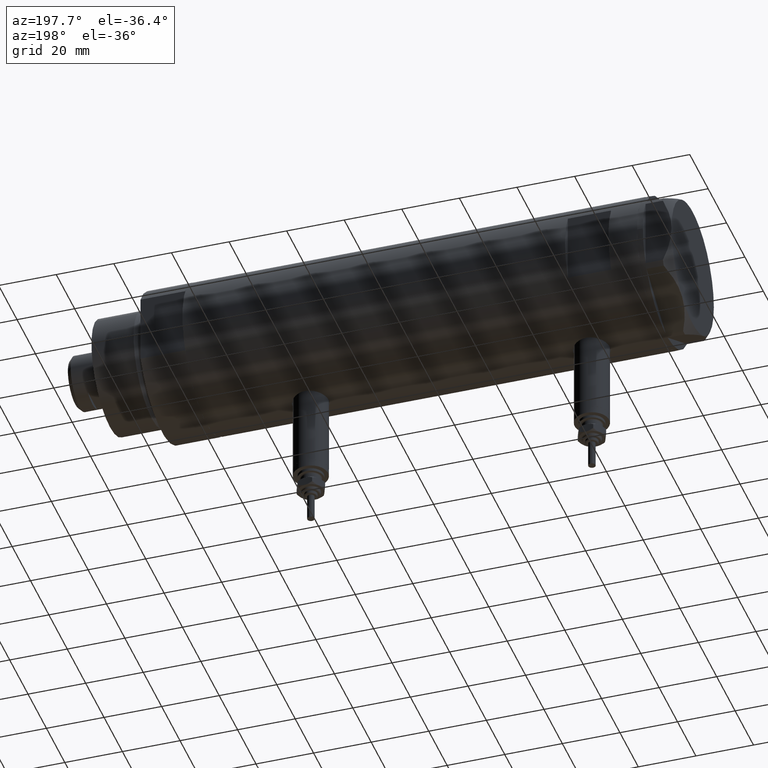
[diagram: clean part render]
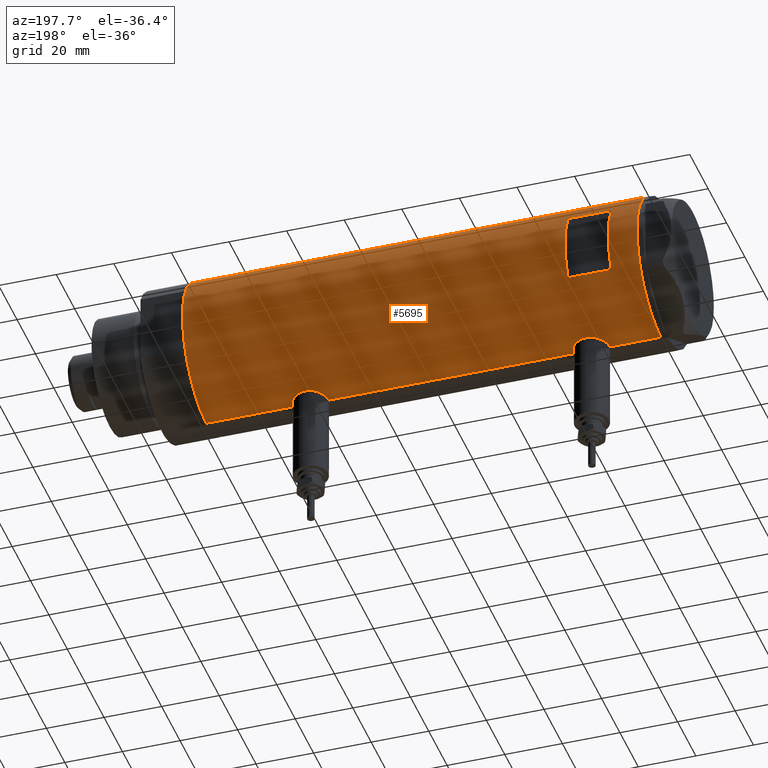
[diagram: same view with one face highlighted and labeled with its STEP entity id]
A machine part, auxiliary view. The second image highlights one B-rep face of the part: STEP entity #5695.
In plain terms, the highlighted cylindrical surface (partial cylindrical patch) has radius 26 mm, axis along (-1, -0, 0).
Its self-contained STEP definition (entity closure, byte-faithful):
#8 = CARTESIAN_POINT ( 'NONE',  ( -25.45277932469922177, 5.307477387851101014, -45.95672800165312566 ) ) ;
#18 = CARTESIAN_POINT ( 'NONE',  ( -25.98789693408479451, 0.8193301824841956460, 48.75051019734655000 ) ) ;
#31 = EDGE_CURVE ( 'NONE', #2025, #3007, #1202, .T. ) ;
#150 = CARTESIAN_POINT ( 'NONE',  ( 25.00820649268566598, 7.115348876445588999, 61.87184000475453161 ) ) ;
#160 = ORIENTED_EDGE ( 'NONE', *, *, #3259, .F. ) ;
#164 = DIRECTION ( 'NONE',  ( -0.000000000000000000, -0.000000000000000000, -1.000000000000000000 ) ) ;
#180 = CARTESIAN_POINT ( 'NONE',  ( 24.89471231507667426, 7.500219916954786292, 59.93878226883027338 ) ) ;
#182 = CARTESIAN_POINT ( 'NONE',  ( 25.72868876879095623, 3.768709330223690479, -33.24732513129933409 ) ) ;
#202 = DIRECTION ( 'NONE',  ( 0.000000000000000000, 0.000000000000000000, 1.000000000000000000 ) ) ;
#207 = CARTESIAN_POINT ( 'NONE',  ( -25.81251897318926680, 3.135439098787741852, -37.22800821914827907 ) ) ;
#210 = CARTESIAN_POINT ( 'NONE',  ( 25.52465069878074644, 4.952713637311400241, 53.81255139184744252 ) ) ;
#213 = CARTESIAN_POINT ( 'NONE',  ( 25.31017500740584936, 5.951503630041857562, -35.17950407362597076 ) ) ;
#233 = ORIENTED_EDGE ( 'NONE', *, *, #1770, .F. ) ;
#241 = CARTESIAN_POINT ( 'NONE',  ( -25.99009688862344447, 0.8219492608955337731, -36.44084060773424483 ) ) ;
#244 = CARTESIAN_POINT ( 'NONE',  ( 25.72923282622329566, 3.765147152416745246, 52.94514424215292081 ) ) ;
#245 = VERTEX_POINT ( 'NONE', #3502 ) ;
#249 = CARTESIAN_POINT ( 'NONE',  ( -25.24784248027030031, 6.209126813737962713, 54.12731838311943022 ) ) ;
#274 = CARTESIAN_POINT ( 'NONE',  ( 25.38117076385348625, 5.641057083563588037, -34.80143420258151110 ) ) ;
#305 = CARTESIAN_POINT ( 'NONE',  ( 24.90951684770588415, 7.451587374037536016, -40.73395604521197555 ) ) ;
#309 = CARTESIAN_POINT ( 'NONE',  ( -25.28673619335055278, 6.048783215285168602, 53.32449009651820404 ) ) ;
#372 = CARTESIAN_POINT ( 'NONE',  ( -25.99009688862344092, 0.8219492608955323298, 61.15915939226576370 ) ) ;
#401 = CARTESIAN_POINT ( 'NONE',  ( -25.99759026373432036, 0.4091325989570642196, 48.71000109955099333 ) ) ;
#425 = CARTESIAN_POINT ( 'NONE',  ( -25.38875076695535071, 5.605452563035138169, -45.42185900824106426 ) ) ;
#458 = ORIENTED_EDGE ( 'NONE', *, *, #1497, .F. ) ;
#460 = CARTESIAN_POINT ( 'NONE',  ( -25.95208098418916975, 1.628413954368978622, -48.69806792170717813 ) ) ;
#490 = CARTESIAN_POINT ( 'NONE',  ( -25.57167265924275412, 4.701795585128879296, -46.77276288310034147 ) ) ;
#576 = DIRECTION ( 'NONE',  ( 0.000000000000000000, 0.000000000000000000, 1.000000000000000000 ) ) ;
#601 = VECTOR ( 'NONE', #1387, 1000.000000000000000 ) ;
#667 = DIRECTION ( 'NONE',  ( 0.000000000000000000, 0.000000000000000000, 1.000000000000000000 ) ) ;
#668 = CARTESIAN_POINT ( 'NONE',  ( 25.59528664075984494, 4.573671112500300673, 53.50090496483274904 ) ) ;
#670 = CARTESIAN_POINT ( 'NONE',  ( 25.20855488770171959, 6.367749707222635891, -35.77997776959043108 ) ) ;
#693 = LINE ( 'NONE', #3207, #3354 ) ;
#695 = CARTESIAN_POINT ( 'NONE',  ( 25.20855488770172670, 6.367749707222635891, 63.42002223040960018 ) ) ;
#722 = CARTESIAN_POINT ( 'NONE',  ( -25.72105193281916513, 3.813738527046914406, -37.68166308900568140 ) ) ;
#725 = CARTESIAN_POINT ( 'NONE',  ( 25.59685363299822924, 4.579266302355740947, 65.40972068102654191 ) ) ;
#759 = CARTESIAN_POINT ( 'NONE',  ( 25.17424625143663164, 6.506691718592096940, -43.51241626033723975 ) ) ;
#761 = CARTESIAN_POINT ( 'NONE',  ( -25.67095236150574067, 4.133649689219791590, 59.65535228274259083 ) ) ;
#782 = CARTESIAN_POINT ( 'NONE',  ( 25.52590365620542912, 4.955152228772147893, -34.09876272411761278 ) ) ;
#784 = CARTESIAN_POINT ( 'NONE',  ( -26.00000000000000711, 0.4145874687851189289, 61.20000000000001705 ) ) ;
#791 = ORIENTED_EDGE ( 'NONE', *, *, #5714, .T. ) ;
#817 = CARTESIAN_POINT ( 'NONE',  ( -25.31518616157687163, 5.930210831981637121, 52.93412882792974017 ) ) ;
#845 = CARTESIAN_POINT ( 'NONE',  ( -25.92257874449351007, 2.014648337067152184, -36.73003581636322679 ) ) ;
#847 = DIRECTION ( 'NONE',  ( 0.000000000000000000, 0.000000000000000000, 1.000000000000000000 ) ) ;
#858 = CARTESIAN_POINT ( 'NONE',  ( -12.12435565298214080, 23.00000000000000355, 68.95000000000003126 ) ) ;
#874 = LINE ( 'NONE', #2340, #4881 ) ;
#877 = CARTESIAN_POINT ( 'NONE',  ( 0.000000000000000000, 0.000000000000000000, -78.95000000000000284 ) ) ;
#922 = LINE ( 'NONE', #4403, #1551 ) ;
#999 = EDGE_CURVE ( 'NONE', #5421, #3831, #3706, .T. ) ;
#1111 = CARTESIAN_POINT ( 'NONE',  ( 25.08669247833292815, 6.831361936037320781, 62.55537739403792585 ) ) ;
#1177 = CARTESIAN_POINT ( 'NONE',  ( 25.78997056644824326, 3.329333406239038506, 66.18834808433845751 ) ) ;
#1179 = CARTESIAN_POINT ( 'NONE',  ( 24.95233689475079331, 7.306396477445179727, -41.46103813146665829 ) ) ;
#1201 = CARTESIAN_POINT ( 'NONE',  ( -25.33346170681504006, 5.849967696906725578, -40.44052947900493677 ) ) ;
#1202 = CIRCLE ( 'NONE', #6194, 26.00000000000000355 ) ;
#1204 = CARTESIAN_POINT ( 'NONE',  ( 24.90976107960111818, 7.450765568638821890, 60.43882869351467235 ) ) ;
#1210 = CARTESIAN_POINT ( 'NONE',  ( -26.00000000000000355, -2.813058302341337106E-16, 61.20000000000000284 ) ) ;
#1238 = CARTESIAN_POINT ( 'NONE',  ( 25.01140519645288762, 7.101774040639622143, 57.02607764299175130 ) ) ;
#1240 = CARTESIAN_POINT ( 'NONE',  ( 25.59528664075983428, 4.573671112500298896, -45.69909503516725380 ) ) ;
#1244 = CARTESIAN_POINT ( 'NONE',  ( -25.43062364804612230, 5.412314182902753679, 51.81772351419070333 ) ) ;
#1273 = CARTESIAN_POINT ( 'NONE',  ( 25.48882460966380492, 5.133289275481218716, -45.22343523597909609 ) ) ;
#1276 = CARTESIAN_POINT ( 'NONE',  ( -25.72105193281917224, 3.813738527046911297, 59.91833691099432713 ) ) ;
#1279 = CARTESIAN_POINT ( 'NONE',  ( 0.000000000000000000, 0.000000000000000000, 53.95000000000012363 ) ) ;
#1300 = CARTESIAN_POINT ( 'NONE',  ( -25.96182217530152769, 1.422664245316465070, 61.03935273092390190 ) ) ;
#1323 = VECTOR ( 'NONE', #3416, 1000.000000000000000 ) ;
#1352 = CARTESIAN_POINT ( 'NONE',  ( 26.00000000000000355, 0.000000000000000000, 78.95000000000000284 ) ) ;
#1375 = VERTEX_POINT ( 'NONE', #2892 ) ;
#1383 = CARTESIAN_POINT ( 'NONE',  ( -25.28915991580759481, 6.038390257328916988, -41.02447348853093700 ) ) ;
#1386 = EDGE_CURVE ( 'NONE', #6103, #1459, #5514, .T. ) ;
#1387 = DIRECTION ( 'NONE',  ( 0.000000000000000000, 0.000000000000000000, 1.000000000000000000 ) ) ;
#1412 = CARTESIAN_POINT ( 'NONE',  ( -26.00000000000000355, 0.2043916521038984246, -48.90000000000002700 ) ) ;
#1422 = CARTESIAN_POINT ( 'NONE',  ( -25.92432690655986960, 2.018143994254070872, 49.02070577177285315 ) ) ;
#1433 = CIRCLE ( 'NONE', #2047, 26.00000000000000355 ) ;
#1458 = CARTESIAN_POINT ( 'NONE',  ( 25.88814720404044323, 2.420758939209245231, 52.34711713171547132 ) ) ;
#1459 = VERTEX_POINT ( 'NONE', #3090 ) ;
#1484 = CARTESIAN_POINT ( 'NONE',  ( 25.86510134953875450, 2.654921787384014298, 52.43132938305096502 ) ) ;
#1497 = EDGE_CURVE ( 'NONE', #2025, #3140, #3814, .T. ) ;
#1551 = VECTOR ( 'NONE', #576, 1000.000000000000000 ) ;
#1582 = EDGE_CURVE ( 'NONE', #245, #6103, #874, .T. ) ;
#1614 = CARTESIAN_POINT ( 'NONE',  ( 25.72868876879096334, 3.768709330223684706, 65.95267486870066875 ) ) ;
#1617 = CARTESIAN_POINT ( 'NONE',  ( -26.00000000000000355, 3.184077527313362130E-15, 48.70000000000000995 ) ) ;
#1653 = CARTESIAN_POINT ( 'NONE',  ( 25.97197502027375293, 1.230965554787593730, -32.34759175501623218 ) ) ;
#1682 = CARTESIAN_POINT ( 'NONE',  ( -25.57189498399056049, 4.707763994471534374, -38.51909718944452266 ) ) ;
#1710 = CARTESIAN_POINT ( 'NONE',  ( 25.38132706741445688, 5.649034551923787895, 54.49268047185956476 ) ) ;
#1711 = ORIENTED_EDGE ( 'NONE', *, *, #4859, .F. ) ;
#1712 = CARTESIAN_POINT ( 'NONE',  ( 25.98255381630415783, 0.9836221648041303389, -32.31066901941808567 ) ) ;
#1743 = CARTESIAN_POINT ( 'NONE',  ( 24.89484527721569052, 7.499778575171895056, 58.95449194517063773 ) ) ;
#1745 = CARTESIAN_POINT ( 'NONE',  ( 25.17636585680005723, 6.493453152855874322, -35.98900750337197962 ) ) ;
#1750 = CARTESIAN_POINT ( 'NONE',  ( -25.52242378584899285, 4.965907353613394193, 58.76719602921738783 ) ) ;
#1770 = EDGE_CURVE ( 'NONE', #4267, #3263, #4775, .T. ) ;
#1779 = CARTESIAN_POINT ( 'NONE',  ( 25.30960479024496479, 5.958491152160522830, -44.33139677679962887 ) ) ;
#1799 = CARTESIAN_POINT ( 'NONE',  ( -25.95015815577423623, 1.621168830448744380, -36.61041429560181371 ) ) ;
#1838 = CARTESIAN_POINT ( 'NONE',  ( -26.00000000000000355, 3.184077527313362130E-15, 48.70000000000000995 ) ) ;
#1926 = CARTESIAN_POINT ( 'NONE',  ( -25.67176285215957066, 4.128807479817786508, -47.35991598451124673 ) ) ;
#1934 = DIRECTION ( 'NONE',  ( 0.000000000000000000, 0.000000000000000000, 1.000000000000000000 ) ) ;
#1935 = CARTESIAN_POINT ( 'NONE',  ( -25.57167265924276123, 4.701795585128874855, 50.82723711689968837 ) ) ;
#1941 = CARTESIAN_POINT ( 'NONE',  ( 25.94484652078419273, 1.709678645892020343, 52.14334653240825190 ) ) ;
#1977 = CARTESIAN_POINT ( 'NONE',  ( 25.94484652078418563, 1.709678645892020787, -47.05665346759175804 ) ) ;
#1995 = ORIENTED_EDGE ( 'NONE', *, *, #2131, .F. ) ;
#2009 = FACE_OUTER_BOUND ( 'NONE', #4539, .T. ) ;
#2012 = LINE ( 'NONE', #5976, #4586 ) ;
#2025 = VERTEX_POINT ( 'NONE', #2327 ) ;
#2031 = AXIS2_PLACEMENT_3D ( 'NONE', #5908, #2076, #2555 ) ;
#2047 = AXIS2_PLACEMENT_3D ( 'NONE', #1279, #4212, #2679 ) ;
#2076 = DIRECTION ( 'NONE',  ( 0.000000000000000000, 0.000000000000000000, 1.000000000000000000 ) ) ;
#2087 = EDGE_CURVE ( 'NONE', #2402, #3831, #6213, .T. ) ;
#2125 = CARTESIAN_POINT ( 'NONE',  ( 25.48882460966380847, 5.133289275481219605, 53.97656476402093517 ) ) ;
#2127 = CARTESIAN_POINT ( 'NONE',  ( 25.03487248886523986, 7.018875226450791871, -42.40423217392064714 ) ) ;
#2131 = EDGE_CURVE ( 'NONE', #3263, #4441, #2012, .T. ) ;
#2148 = LINE ( 'NONE', #4581, #4895 ) ;
#2157 = CARTESIAN_POINT ( 'NONE',  ( 25.97197502027376004, 1.230965554787596394, 66.85240824498376355 ) ) ;
#2190 = CARTESIAN_POINT ( 'NONE',  ( 25.11550258961940330, 6.725017566862032226, 62.77928477806020169 ) ) ;
#2219 = CARTESIAN_POINT ( 'NONE',  ( 25.11254978876589661, 6.737777305585160192, 56.11974648253588782 ) ) ;
#2221 = CARTESIAN_POINT ( 'NONE',  ( 25.41763780493360514, 5.474943943663457269, -34.61823686211066331 ) ) ;
#2258 = CARTESIAN_POINT ( 'NONE',  ( -25.45277932469921822, 5.307477387851097461, 51.64327199834691129 ) ) ;
#2304 = CARTESIAN_POINT ( 'NONE',  ( -25.23766275406409321, 6.249830297096033327, -42.23808095444884714 ) ) ;
#2312 = CARTESIAN_POINT ( 'NONE',  ( -25.81251897318925614, 3.135439098787738743, 60.37199178085172235 ) ) ;
#2325 = EDGE_CURVE ( 'NONE', #1375, #4267, #3773, .T. ) ;
#2327 = CARTESIAN_POINT ( 'NONE',  ( 26.00000000000000355, 0.000000000000000000, -78.95000000000000284 ) ) ;
#2337 = CARTESIAN_POINT ( 'NONE',  ( -25.36894112891956610, 5.694149517195238985, -45.23482505198308701 ) ) ;
#2340 = CARTESIAN_POINT ( 'NONE',  ( 26.00000000000000355, 0.000000000000000000, -78.95000000000000284 ) ) ;
#2341 = ORIENTED_EDGE ( 'NONE', *, *, #5247, .F. ) ;
#2402 = VERTEX_POINT ( 'NONE', #1352 ) ;
#2405 = CARTESIAN_POINT ( 'NONE',  ( -25.98057228346869962, 1.024901789261879470, -48.81880585854828070 ) ) ;
#2452 = CARTESIAN_POINT ( 'NONE',  ( 26.00000000000000355, 3.343657407582877388E-16, -47.25000000000000000 ) ) ;
#2486 = CARTESIAN_POINT ( 'NONE',  ( 25.78922176490237916, 3.335318700939508219, -46.48550568766475521 ) ) ;
#2492 = CYLINDRICAL_SURFACE ( 'NONE', #5738, 26.00000000000000355 ) ;
#2518 = CARTESIAN_POINT ( 'NONE',  ( 0.000000000000000000, 0.000000000000000000, -78.95000000000000284 ) ) ;
#2555 = DIRECTION ( 'NONE',  ( 1.000000000000000000, 0.000000000000000000, 0.000000000000000000 ) ) ;
#2578 = CARTESIAN_POINT ( 'NONE',  ( 25.52590365620543622, 4.955152228772147893, 65.10123727588241138 ) ) ;
#2607 = CARTESIAN_POINT ( 'NONE',  ( 25.17636585680006434, 6.493453152855875210, 63.21099249662805164 ) ) ;
#2638 = CARTESIAN_POINT ( 'NONE',  ( 25.31017500740585291, 5.951503630041862891, 64.02049592637402498 ) ) ;
#2640 = CARTESIAN_POINT ( 'NONE',  ( 24.89484527721569052, 7.499778575171895056, -40.24550805482936511 ) ) ;
#2665 = CARTESIAN_POINT ( 'NONE',  ( -25.52242378584899640, 4.965907353613397746, -38.83280397078262780 ) ) ;
#2668 = CARTESIAN_POINT ( 'NONE',  ( 25.99999999999999645, 0.2455784580650495763, 66.94999999999998863 ) ) ;
#2679 = DIRECTION ( 'NONE',  ( 0.000000000000000000, 1.000000000000000000, -4.536969091016264466E-15 ) ) ;
#2695 = CARTESIAN_POINT ( 'NONE',  ( -25.31738333113901618, 5.918941409682885180, -40.63242077527679186 ) ) ;
#2700 = CARTESIAN_POINT ( 'NONE',  ( 24.90976107960111818, 7.450765568638821890, -38.76117130648535181 ) ) ;
#2727 = CARTESIAN_POINT ( 'NONE',  ( 25.93077501166307641, 1.957027822413551332, -32.49302141437591729 ) ) ;
#2730 = CARTESIAN_POINT ( 'NONE',  ( -25.23757896588370286, 6.250168635417627350, 54.54324691589500418 ) ) ;
#2740 = FACE_BOUND ( 'NONE', #4140, .T. ) ;
#2812 = CARTESIAN_POINT ( 'NONE',  ( -25.49884629689154281, 5.081547904122038162, -46.29439805696093657 ) ) ;
#2820 = CARTESIAN_POINT ( 'NONE',  ( -25.67176285215957421, 4.128807479817785620, 50.24008401548878311 ) ) ;
#2845 = CARTESIAN_POINT ( 'NONE',  ( -25.23757896588369221, 6.250168635417630902, -43.05675308410503987 ) ) ;
#2848 = CARTESIAN_POINT ( 'NONE',  ( -26.00000000000000355, -6.335391871414786776E-16, -36.39999999999999858 ) ) ;
#2868 = EDGE_CURVE ( 'NONE', #3007, #5007, #693, .T. ) ;
#2882 = CARTESIAN_POINT ( 'NONE',  ( -25.59680708126580129, 4.563450671387943913, -46.92543949979972240 ) ) ;
#2889 = CARTESIAN_POINT ( 'NONE',  ( -25.95208098418916620, 1.628413954368980399, 48.90193207829285882 ) ) ;
#2892 = CARTESIAN_POINT ( 'NONE',  ( -12.12435565298214080, 23.00000000000000355, 53.95000000000002416 ) ) ;
#2917 = CARTESIAN_POINT ( 'NONE',  ( -25.59680708126580129, 4.563450671387941249, 50.67456050020032876 ) ) ;
#2954 = CARTESIAN_POINT ( 'NONE',  ( 26.00000000000000711, 0.4983968644076025023, -47.25000000000000000 ) ) ;
#2958 = VERTEX_POINT ( 'NONE', #2848 ) ;
#3007 = VERTEX_POINT ( 'NONE', #4766 ) ;
#3052 = CARTESIAN_POINT ( 'NONE',  ( 25.27545867390324474, 6.096774941222085964, 63.82477406957966082 ) ) ;
#3090 = CARTESIAN_POINT ( 'NONE',  ( 26.00000000000000355, -3.975028449552882818E-20, 66.95000000000000284 ) ) ;
#3092 = CARTESIAN_POINT ( 'NONE',  ( 24.97016856345952718, 7.245430721349219283, -41.70303040919392856 ) ) ;
#3120 = CARTESIAN_POINT ( 'NONE',  ( 25.63006864069251023, 4.375159448492147440, 53.35345588241118264 ) ) ;
#3140 = VERTEX_POINT ( 'NONE', #4612 ) ;
#3146 = CARTESIAN_POINT ( 'NONE',  ( 25.30960479024496834, 5.958491152160525495, 54.86860322320039529 ) ) ;
#3152 = CARTESIAN_POINT ( 'NONE',  ( -25.28915991580759837, 6.038390257328908106, 56.57552651146907152 ) ) ;
#3173 = CARTESIAN_POINT ( 'NONE',  ( -25.96182217530152769, 1.422664245316466847, -36.56064726907609952 ) ) ;
#3180 = CARTESIAN_POINT ( 'NONE',  ( 24.96662810169869573, 7.257932614256868753, -37.79702690473265392 ) ) ;
#3207 = CARTESIAN_POINT ( 'NONE',  ( -26.00000000000000355, 3.184081677783118585E-15, -78.95000000000000284 ) ) ;
#3210 = CARTESIAN_POINT ( 'NONE',  ( 25.78997056644824326, 3.329333406239038951, -33.01165191566153823 ) ) ;
#3212 = CARTESIAN_POINT ( 'NONE',  ( -25.23766275406409321, 6.249830297096026221, 55.36191904555118271 ) ) ;
#3231 = CARTESIAN_POINT ( 'NONE',  ( -26.00000000000000355, -6.335391871414786776E-16, -36.39999999999999858 ) ) ;
#3242 = CARTESIAN_POINT ( 'NONE',  ( -25.38675822915648084, 5.615881323213569587, 57.72306781662010877 ) ) ;
#3259 = EDGE_CURVE ( 'NONE', #1459, #2402, #2148, .T. ) ;
#3263 = VERTEX_POINT ( 'NONE', #4548 ) ;
#3323 = CARTESIAN_POINT ( 'NONE',  ( -26.00000000000000355, 3.184077527325983904E-15, -48.90000000000001279 ) ) ;
#3354 = VECTOR ( 'NONE', #667, 1000.000000000000000 ) ;
#3356 = CARTESIAN_POINT ( 'NONE',  ( -25.99759026373433457, 0.4091325989570669952, -48.88999890044901520 ) ) ;
#3378 = CARTESIAN_POINT ( 'NONE',  ( 12.12435565298213724, 23.00000000000000355, 53.95000000000002416 ) ) ;
#3397 = CARTESIAN_POINT ( 'NONE',  ( -25.24784248027029676, 6.209126813737969819, -43.47268161688059251 ) ) ;
#3400 = DIRECTION ( 'NONE',  ( 1.000000000000000000, 0.000000000000000000, 0.000000000000000000 ) ) ;
#3416 = DIRECTION ( 'NONE',  ( 0.000000000000000000, 0.000000000000000000, 1.000000000000000000 ) ) ;
#3430 = CARTESIAN_POINT ( 'NONE',  ( 25.78922176490237916, 3.335318700939509995, 52.71449431233524052 ) ) ;
#3432 = CARTESIAN_POINT ( 'NONE',  ( 25.86510134953875450, 2.654921787384013854, -46.76867061694904493 ) ) ;
#3435 = ORIENTED_EDGE ( 'NONE', *, *, #3840, .F. ) ;
#3454 = CARTESIAN_POINT ( 'NONE',  ( -26.00000000000000355, -2.813058302341337106E-16, 61.20000000000000284 ) ) ;
#3502 = CARTESIAN_POINT ( 'NONE',  ( 26.00000000000000355, -3.975025925197986111E-20, -32.25000000000000000 ) ) ;
#3522 = ORIENTED_EDGE ( 'NONE', *, *, #999, .T. ) ;
#3564 = EDGE_CURVE ( 'NONE', #4441, #1375, #1433, .T. ) ;
#3609 = CARTESIAN_POINT ( 'NONE',  ( 26.00000000000000000, 0.2455784580650491877, -32.25000000000000000 ) ) ;
#3623 = ORIENTED_EDGE ( 'NONE', *, *, #2868, .T. ) ;
#3630 = CARTESIAN_POINT ( 'NONE',  ( -25.42927140605242542, 5.422776733968219354, -39.51556003986718224 ) ) ;
#3635 = CARTESIAN_POINT ( 'NONE',  ( 25.38132706741445688, 5.649034551923786118, -44.70731952814045229 ) ) ;
#3638 = CARTESIAN_POINT ( 'NONE',  ( -25.33346170681504717, 5.849967696906719361, 57.15947052099508596 ) ) ;
#3662 = CARTESIAN_POINT ( 'NONE',  ( 24.95233689475079331, 7.306396477445179727, 57.73896186853336587 ) ) ;
#3664 = CARTESIAN_POINT ( 'NONE',  ( 25.99652140603931727, 0.4914164889130531177, -32.26203179519542630 ) ) ;
#3668 = CARTESIAN_POINT ( 'NONE',  ( -25.90661719257679252, 2.209805098346976138, 60.79988745781522397 ) ) ;
#3671 = CARTESIAN_POINT ( 'NONE',  ( -26.00000000000000355, 3.184081677783118585E-15, -78.95000000000000284 ) ) ;
#3698 = CARTESIAN_POINT ( 'NONE',  ( 25.59685363299823280, 4.579266302355748053, -33.79027931897348225 ) ) ;
#3702 = CARTESIAN_POINT ( 'NONE',  ( -25.85406084573620689, 2.777003695811653738, 60.56412841326095275 ) ) ;
#3706 = LINE ( 'NONE', #3671, #5900 ) ;
#3773 = LINE ( 'NONE', #4857, #1323 ) ;
#3778 = CARTESIAN_POINT ( 'NONE',  ( -25.98789693408478385, 0.8193301824841990877, -48.84948980265347984 ) ) ;
#3782 = VERTEX_POINT ( 'NONE', #1617 ) ;
#3811 = CARTESIAN_POINT ( 'NONE',  ( -25.92432690655987315, 2.018143994254076201, -48.57929422822716958 ) ) ;
#3814 = LINE ( 'NONE', #4767, #601 ) ;
#3828 = DIRECTION ( 'NONE',  ( 1.000000000000000000, 0.000000000000000000, 0.000000000000000000 ) ) ;
#3831 = VERTEX_POINT ( 'NONE', #5422 ) ;
#3839 = CARTESIAN_POINT ( 'NONE',  ( -25.24766879991037527, 6.209837761082662055, -41.83150430970304967 ) ) ;
#3840 = EDGE_CURVE ( 'NONE', #3140, #245, #4696, .T. ) ;
#3854 = ORIENTED_EDGE ( 'NONE', *, *, #31, .T. ) ;
#3875 = CARTESIAN_POINT ( 'NONE',  ( -25.43062364804612230, 5.412314182902757231, -45.78227648580933362 ) ) ;
#3883 = CARTESIAN_POINT ( 'NONE',  ( -25.72087293759780380, 3.814831448865741770, 49.98261705172143365 ) ) ;
#3887 = CARTESIAN_POINT ( 'NONE',  ( 25.92799636947106023, 1.948138538329397873, 52.20322312211786908 ) ) ;
#3921 = CARTESIAN_POINT ( 'NONE',  ( 25.88814720404043968, 2.420758939209242566, -46.85288286828453863 ) ) ;
#3948 = CARTESIAN_POINT ( 'NONE',  ( 25.92799636947105313, 1.948138538329397651, -46.99677687788213376 ) ) ;
#4078 = CARTESIAN_POINT ( 'NONE',  ( 25.98255381630415073, 0.9836221648041312271, 66.88933098058191717 ) ) ;
#4109 = CARTESIAN_POINT ( 'NONE',  ( -25.67095236150573712, 4.133649689219794254, -37.94464771725741770 ) ) ;
#4115 = CARTESIAN_POINT ( 'NONE',  ( 25.72923282622328855, 3.765147152416745246, -46.25485575784708914 ) ) ;
#4139 = CARTESIAN_POINT ( 'NONE',  ( 25.38117076385348270, 5.641057083563592478, 64.39856579741849885 ) ) ;
#4140 = EDGE_LOOP ( 'NONE', ( #5351, #4244, #1995, #233 ) ) ;
#4144 = CARTESIAN_POINT ( 'NONE',  ( -25.36894112891956965, 5.694149517195234544, 52.36517494801690731 ) ) ;
#4167 = CARTESIAN_POINT ( 'NONE',  ( 24.90951684770588415, 7.451587374037535128, 58.46604395478803440 ) ) ;
#4177 = DIRECTION ( 'NONE',  ( 0.000000000000000000, 0.000000000000000000, 1.000000000000000000 ) ) ;
#4207 = CARTESIAN_POINT ( 'NONE',  ( -25.49884629689154281, 5.081547904122033721, 51.30560194303910748 ) ) ;
#4212 = DIRECTION ( 'NONE',  ( 0.000000000000000000, 4.625929269271486900E-15, 1.000000000000000000 ) ) ;
#4244 = ORIENTED_EDGE ( 'NONE', *, *, #3564, .F. ) ;
#4267 = VERTEX_POINT ( 'NONE', #858 ) ;
#4322 = CARTESIAN_POINT ( 'NONE',  ( -25.81206132723604441, 3.139065735901513055, -48.06978769360877379 ) ) ;
#4329 = CARTESIAN_POINT ( 'NONE',  ( -25.98057228346870673, 1.024901789261881913, 48.78119414145176336 ) ) ;
#4352 = DIRECTION ( 'NONE',  ( 1.000000000000000000, -5.329070518200751394E-15, 0.000000000000000000 ) ) ;
#4361 = CARTESIAN_POINT ( 'NONE',  ( 26.00000000000000355, -7.221007372182803218E-17, 51.95000000000000284 ) ) ;
#4398 = CARTESIAN_POINT ( 'NONE',  ( 25.98569222077104968, 0.9879514382926379845, -47.20081846687561011 ) ) ;
#4403 = CARTESIAN_POINT ( 'NONE',  ( -26.00000000000000355, 3.184081677783118585E-15, -78.95000000000000284 ) ) ;
#4410 = CARTESIAN_POINT ( 'NONE',  ( 26.00000000000000355, -7.221007372182803218E-17, 51.95000000000000284 ) ) ;
#4425 = CARTESIAN_POINT ( 'NONE',  ( -25.81206132723605506, 3.139065735901517495, 49.53021230639125605 ) ) ;
#4427 = CARTESIAN_POINT ( 'NONE',  ( 26.00000000000000711, 0.4983968644076020582, 51.95000000000000995 ) ) ;
#4434 = DIRECTION ( 'NONE',  ( 0.000000000000000000, 0.000000000000000000, 1.000000000000000000 ) ) ;
#4441 = VERTEX_POINT ( 'NONE', #3378 ) ;
#4451 = B_SPLINE_CURVE_WITH_KNOTS ( 'NONE', 3,
 ( #3231, #6153, #241, #3173, #1799, #845, #5096, #4587, #207, #722, #4109, #1682, #2665, #3630, #5579, #1201, #2695, #1383, #4799, #3839, #2304, #2845, #3397, #6304, #4837, #2337, #425, #3875, #8, #2812, #5349, #490, #2882, #1926, #5790, #4322, #5377, #3811, #460, #2405, #3778, #3356, #1412, #3323 ),
 .UNSPECIFIED., .F., .F.,
 ( 4, 2, 2, 2, 2, 2, 2, 2, 2, 2, 2, 2, 2, 2, 2, 2, 2, 2, 2, 2, 2, 4 ),
 ( 6.153461189582338581E-19, 0.001225774033668418535, 0.001838661050502624550, 0.002451548067336830564, 0.003677322101005242594, 0.004903096134673655924, 0.006128870168342067520, 0.007354644202010479984, 0.007967531218844674940, 0.008580418235678871630, 0.009806192269347263277, 0.01103196630301565666, 0.01225774033668404657, 0.01287062735351824326, 0.01348351437035243995, 0.01409640138718663491, 0.01470928840402082986, 0.01593506243768923539, 0.01716083647135764612, 0.01838661050502604991, 0.01899949752186025353, 0.01961238453869445370 ),
 .UNSPECIFIED. ) ;
#4452 = CARTESIAN_POINT ( 'NONE',  ( -26.00000000000000355, 3.184077527325983904E-15, -48.90000000000001279 ) ) ;
#4539 = EDGE_LOOP ( 'NONE', ( #3854, #3623, #2341, #791, #1711, #3522, #4834, #160, #5747, #5615, #3435, #458 ) ) ;
#4542 = CARTESIAN_POINT ( 'NONE',  ( 0.000000000000000000, 0.000000000000000000, 68.95000000000003126 ) ) ;
#4548 = CARTESIAN_POINT ( 'NONE',  ( 12.12435565298214080, 23.00000000000000355, 68.95000000000003126 ) ) ;
#4581 = CARTESIAN_POINT ( 'NONE',  ( 26.00000000000000355, 0.000000000000000000, -78.95000000000000284 ) ) ;
#4586 = VECTOR ( 'NONE', #5432, 1000.000000000000000 ) ;
#4587 = CARTESIAN_POINT ( 'NONE',  ( -25.85406084573621754, 2.777003695811657735, -37.03587158673904156 ) ) ;
#4592 = CARTESIAN_POINT ( 'NONE',  ( 25.00820649268565887, 7.115348876445586335, -37.32815999524549966 ) ) ;
#4612 = CARTESIAN_POINT ( 'NONE',  ( 26.00000000000000355, 3.343657407582877388E-16, -47.25000000000000000 ) ) ;
#4622 = CARTESIAN_POINT ( 'NONE',  ( 25.03487248886523986, 7.018875226450790095, 56.79576782607936281 ) ) ;
#4624 = CARTESIAN_POINT ( 'NONE',  ( 25.11254978876589306, 6.737777305585159304, -43.08025351746413634 ) ) ;
#4627 = CARTESIAN_POINT ( 'NONE',  ( -25.95015815577423268, 1.621168830448741938, 60.98958570439820193 ) ) ;
#4649 = CARTESIAN_POINT ( 'NONE',  ( 25.27545867390324119, 6.096774941222088628, -35.37522593042034202 ) ) ;
#4680 = CARTESIAN_POINT ( 'NONE',  ( -25.57189498399055338, 4.707763994471528157, 59.08090281055547166 ) ) ;
#4696 = B_SPLINE_CURVE_WITH_KNOTS ( 'NONE', 3,
 ( #2452, #2954, #4398, #1977, #3948, #3921, #3432, #2486, #4115, #6069, #1240, #5556, #1273, #3635, #1779, #759, #4624, #2127, #6127, #3092, #1179, #305, #2640, #5671, #2700, #3180, #4592, #5139, #5583, #1745, #670, #4649, #213, #274, #2221, #782, #3698, #182, #3210, #5164, #2727, #1653, #1712, #3664, #3609, #5646 ),
 .UNSPECIFIED., .F., .F.,
 ( 4, 2, 2, 2, 2, 2, 2, 2, 2, 2, 2, 2, 2, 2, 2, 2, 2, 2, 2, 2, 2, 2, 4 ),
 ( 3.246886709775799722E-19, 0.001473395154583074379, 0.002210092731874609400, 0.002946790309166144421, 0.004420185463749214463, 0.005156883041040750786, 0.005893580618332287108, 0.007366975772915358017, 0.008840370927498430662, 0.009577068504789955708, 0.01031376608208147902, 0.01178716123666452911, 0.01326055639124757921, 0.01473395154583062930, 0.01547064912312214567, 0.01620734670041366204, 0.01694404427770517668, 0.01768074185499669479, 0.01915413700957973794, 0.02062753216416278457, 0.02210092731874583119, 0.02283762489603735277, 0.02357432247332888128 ),
 .UNSPECIFIED. ) ;
#4766 = CARTESIAN_POINT ( 'NONE',  ( -26.00000000000000355, 3.184081677783118585E-15, -78.95000000000000284 ) ) ;
#4767 = CARTESIAN_POINT ( 'NONE',  ( 26.00000000000000355, 0.000000000000000000, -78.95000000000000284 ) ) ;
#4775 = CIRCLE ( 'NONE', #5603, 26.00000000000000355 ) ;
#4799 = CARTESIAN_POINT ( 'NONE',  ( -25.27696731428695642, 6.089059008147568619, -41.22583693040520103 ) ) ;
#4834 = ORIENTED_EDGE ( 'NONE', *, *, #2087, .F. ) ;
#4837 = CARTESIAN_POINT ( 'NONE',  ( -25.31518616157687873, 5.930210831981644226, -44.66587117207026836 ) ) ;
#4857 = CARTESIAN_POINT ( 'NONE',  ( -12.12435565298214080, 23.00000000000000355, -78.95000000000000284 ) ) ;
#4859 = EDGE_CURVE ( 'NONE', #5421, #3782, #5831, .T. ) ;
#4881 = VECTOR ( 'NONE', #847, 1000.000000000000000 ) ;
#4895 = VECTOR ( 'NONE', #202, 1000.000000000000000 ) ;
#5006 = CARTESIAN_POINT ( 'NONE',  ( 26.00000000000000355, -3.975028449552882818E-20, 66.95000000000000284 ) ) ;
#5007 = VERTEX_POINT ( 'NONE', #4452 ) ;
#5070 = CARTESIAN_POINT ( 'NONE',  ( 25.93077501166307286, 1.957027822413553109, 66.70697858562409976 ) ) ;
#5096 = CARTESIAN_POINT ( 'NONE',  ( -25.90661719257678541, 2.209805098346977914, -36.80011254218479166 ) ) ;
#5101 = CARTESIAN_POINT ( 'NONE',  ( 25.41763780493360869, 5.474943943663453716, 64.58176313788939638 ) ) ;
#5106 = CARTESIAN_POINT ( 'NONE',  ( -25.27696731428695998, 6.089059008147561514, 56.37416306959482171 ) ) ;
#5139 = CARTESIAN_POINT ( 'NONE',  ( 25.08669247833291749, 6.831361936037321669, -36.64462260596211252 ) ) ;
#5164 = CARTESIAN_POINT ( 'NONE',  ( 25.89067367629246164, 2.424883365422552561, -32.63594795494832113 ) ) ;
#5247 = EDGE_CURVE ( 'NONE', #2958, #5007, #4451, .T. ) ;
#5324 = CARTESIAN_POINT ( 'NONE',  ( -25.99999999999999289, 0.2043916521039015888, 48.69999999999999574 ) ) ;
#5349 = CARTESIAN_POINT ( 'NONE',  ( -25.52275868012768711, 4.960454986366452879, -46.45761629406634796 ) ) ;
#5351 = ORIENTED_EDGE ( 'NONE', *, *, #2325, .F. ) ;
#5377 = CARTESIAN_POINT ( 'NONE',  ( -25.85449082491263439, 2.772892880050690234, -48.26609297485322969 ) ) ;
#5421 = VERTEX_POINT ( 'NONE', #3454 ) ;
#5422 = CARTESIAN_POINT ( 'NONE',  ( -26.00000000000000355, 3.184081677783118585E-15, 78.95000000000000284 ) ) ;
#5432 = DIRECTION ( 'NONE',  ( -0.000000000000000000, -0.000000000000000000, -1.000000000000000000 ) ) ;
#5483 = CARTESIAN_POINT ( 'NONE',  ( 25.17424625143663164, 6.506691718592099605, 55.68758373966277020 ) ) ;
#5514 = B_SPLINE_CURVE_WITH_KNOTS ( 'NONE', 3,
 ( #4361, #4427, #6322, #1941, #3887, #1458, #1484, #3430, #244, #3120, #668, #210, #2125, #1710, #3146, #5483, #2219, #4622, #1238, #5554, #3662, #4167, #1743, #180, #1204, #5581, #150, #1111, #2190, #2607, #695, #3052, #2638, #4139, #5101, #2578, #725, #1614, #1177, #6093, #5070, #2157, #4078, #5612, #2668, #5006 ),
 .UNSPECIFIED., .F., .F.,
 ( 4, 2, 2, 2, 2, 2, 2, 2, 2, 2, 2, 2, 2, 2, 2, 2, 2, 2, 2, 2, 2, 2, 4 ),
 ( 7.012020075610059463E-20, 0.001473395154583048575, 0.002210092731874574272, 0.002946790309166099752, 0.004420185463749143340, 0.005156883041040665784, 0.005893580618332189096, 0.007366975772915219239, 0.008840370927498248516, 0.009577068504789763154, 0.01031376608208127779, 0.01178716123666430533, 0.01326055639124733287, 0.01473395154583036042, 0.01547064912312189240, 0.01620734670041342612, 0.01694404427770495464, 0.01768074185499648662, 0.01915413700957958529, 0.02062753216416268048, 0.02210092731874577221, 0.02283762489603732848, 0.02357432247332888128 ),
 .UNSPECIFIED. ) ;
#5554 = CARTESIAN_POINT ( 'NONE',  ( 24.97016856345952363, 7.245430721349218395, 57.49696959080608138 ) ) ;
#5556 = CARTESIAN_POINT ( 'NONE',  ( 25.52465069878074999, 4.952713637311402906, -45.38744860815256743 ) ) ;
#5579 = CARTESIAN_POINT ( 'NONE',  ( -25.38675822915648439, 5.615881323213576692, -39.87693218337989975 ) ) ;
#5581 = CARTESIAN_POINT ( 'NONE',  ( 24.96662810169869928, 7.257932614256870529, 61.40297309526737024 ) ) ;
#5583 = CARTESIAN_POINT ( 'NONE',  ( 25.11550258961939974, 6.725017566862030449, -36.42071522193980826 ) ) ;
#5585 = CARTESIAN_POINT ( 'NONE',  ( -25.31738333113901973, 5.918941409682879851, 56.96757922472323799 ) ) ;
#5603 = AXIS2_PLACEMENT_3D ( 'NONE', #4542, #164, #4352 ) ;
#5612 = CARTESIAN_POINT ( 'NONE',  ( 25.99652140603930661, 0.4914164889130520075, 66.93796820480456233 ) ) ;
#5615 = ORIENTED_EDGE ( 'NONE', *, *, #1582, .F. ) ;
#5616 = CARTESIAN_POINT ( 'NONE',  ( -25.38875076695534716, 5.605452563035134617, 52.17814099175896558 ) ) ;
#5646 = CARTESIAN_POINT ( 'NONE',  ( 26.00000000000000355, -3.975025925197986111E-20, -32.25000000000000000 ) ) ;
#5650 = CARTESIAN_POINT ( 'NONE',  ( -25.24766879991037172, 6.209837761082653174, 55.76849569029696596 ) ) ;
#5671 = CARTESIAN_POINT ( 'NONE',  ( 24.89471231507667071, 7.500219916954787180, -39.26121773116972236 ) ) ;
#5674 = CARTESIAN_POINT ( 'NONE',  ( -25.92257874449351007, 2.014648337067150408, 60.86996418363676753 ) ) ;
#5695 = ADVANCED_FACE ( 'NONE', ( #2740, #2009 ), #2492, .T. ) ;
#5714 = EDGE_CURVE ( 'NONE', #2958, #3782, #922, .T. ) ;
#5738 = AXIS2_PLACEMENT_3D ( 'NONE', #2518, #4434, #3828 ) ;
#5747 = ORIENTED_EDGE ( 'NONE', *, *, #1386, .F. ) ;
#5790 = CARTESIAN_POINT ( 'NONE',  ( -25.72087293759779314, 3.814831448865740438, -47.61738294827858908 ) ) ;
#5799 = CARTESIAN_POINT ( 'NONE',  ( -25.85449082491264861, 2.772892880050687126, 49.33390702514680015 ) ) ;
#5831 = B_SPLINE_CURVE_WITH_KNOTS ( 'NONE', 3,
 ( #1210, #784, #372, #1300, #4627, #5674, #3668, #3702, #2312, #1276, #761, #4680, #1750, #6216, #3242, #3638, #5585, #3152, #5106, #5650, #3212, #2730, #249, #309, #817, #4144, #5616, #1244, #2258, #4207, #6161, #1935, #2917, #2820, #3883, #4425, #5799, #1422, #2889, #4329, #18, #401, #5324, #1838 ),
 .UNSPECIFIED., .F., .F.,
 ( 4, 2, 2, 2, 2, 2, 2, 2, 2, 2, 2, 2, 2, 2, 2, 2, 2, 2, 2, 2, 2, 4 ),
 ( 2.732276935479321607E-19, 0.001225774033668403139, 0.001838661050502602649, 0.002451548067336802375, 0.003677322101005202262, 0.004903096134673601281, 0.006128870168342001601, 0.007354644202010401054, 0.007967531218844600346, 0.008580418235678800506, 0.009806192269347199092, 0.01103196630301559768, 0.01225774033668399626, 0.01287062735351819469, 0.01348351437035239485, 0.01409640138718659501, 0.01470928840402079343, 0.01593506243768920069, 0.01716083647135761142, 0.01838661050502602215, 0.01899949752186022578, 0.01961238453869442941 ),
 .UNSPECIFIED. ) ;
#5900 = VECTOR ( 'NONE', #4177, 1000.000000000000000 ) ;
#5908 = CARTESIAN_POINT ( 'NONE',  ( 0.000000000000000000, 0.000000000000000000, 78.95000000000000284 ) ) ;
#5976 = CARTESIAN_POINT ( 'NONE',  ( 12.12435565298214080, 23.00000000000000355, -78.95000000000000284 ) ) ;
#6069 = CARTESIAN_POINT ( 'NONE',  ( 25.63006864069249602, 4.375159448492148329, -45.84654411758881309 ) ) ;
#6093 = CARTESIAN_POINT ( 'NONE',  ( 25.89067367629246164, 2.424883365422551229, 66.56405204505169593 ) ) ;
#6103 = VERTEX_POINT ( 'NONE', #4410 ) ;
#6127 = CARTESIAN_POINT ( 'NONE',  ( 25.01140519645288762, 7.101774040639623919, -42.17392235700824443 ) ) ;
#6153 = CARTESIAN_POINT ( 'NONE',  ( -26.00000000000001066, 0.4145874687851193729, -36.40000000000000568 ) ) ;
#6161 = CARTESIAN_POINT ( 'NONE',  ( -25.52275868012767646, 4.960454986366448438, 51.14238370593368899 ) ) ;
#6194 = AXIS2_PLACEMENT_3D ( 'NONE', #877, #1934, #3400 ) ;
#6213 = CIRCLE ( 'NONE', #2031, 26.00000000000000355 ) ;
#6216 = CARTESIAN_POINT ( 'NONE',  ( -25.42927140605241121, 5.422776733968213136, 58.08443996013282629 ) ) ;
#6304 = CARTESIAN_POINT ( 'NONE',  ( -25.28673619335055989, 6.048783215285176595, -44.27550990348180449 ) ) ;
#6322 = CARTESIAN_POINT ( 'NONE',  ( 25.98569222077105678, 0.9879514382926382066, 51.99918153312441405 ) ) ;